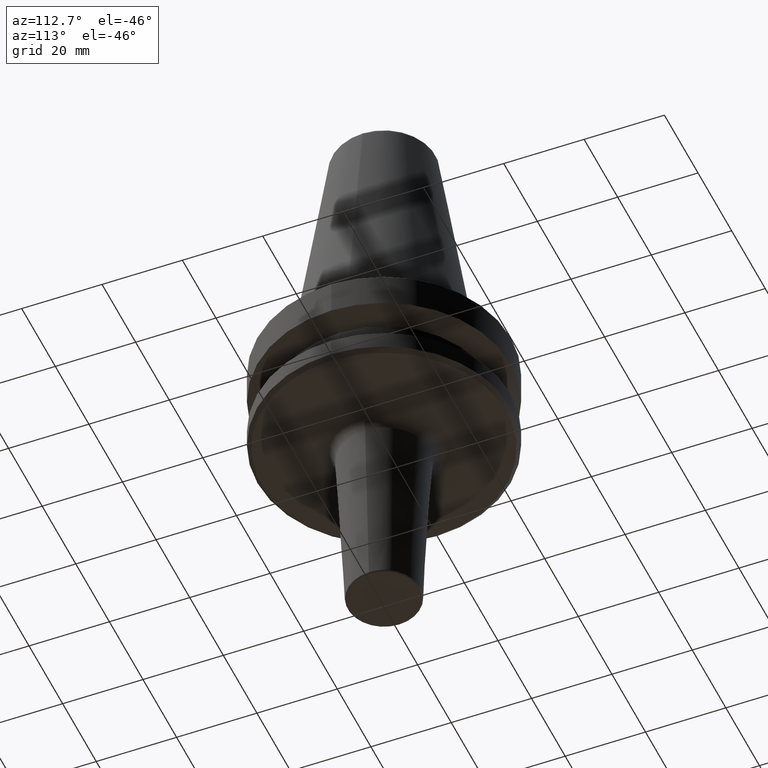
[diagram: clean part render]
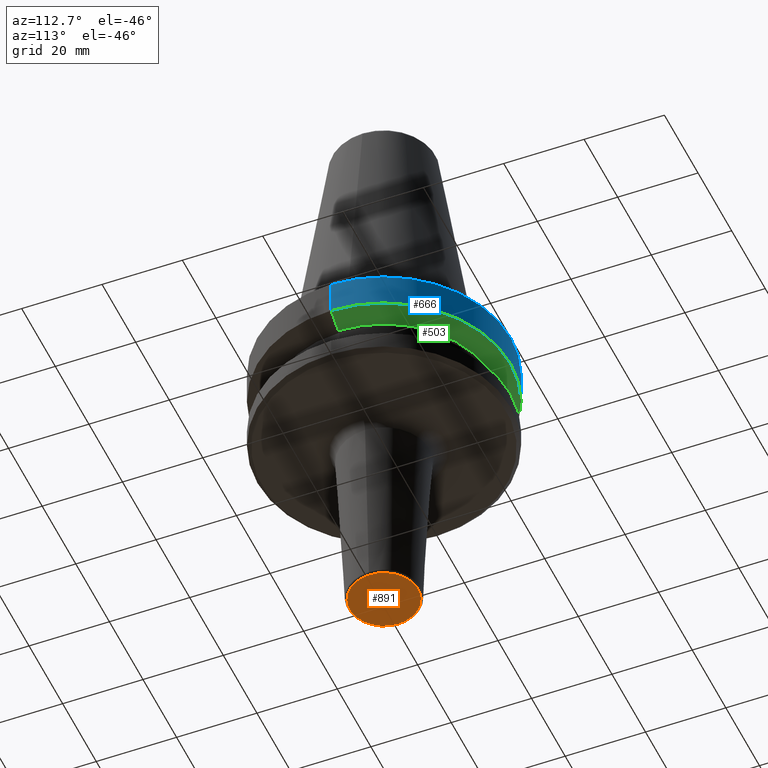
[diagram: same view with three faces highlighted in distinct colors, each labeled with its STEP entity id]
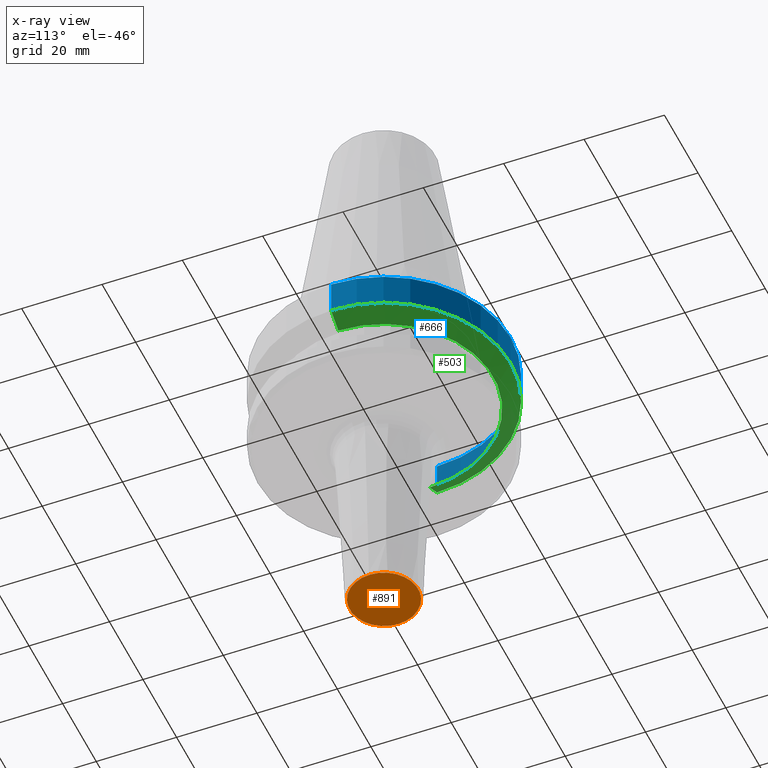
[diagram: x-ray of the same camera — body ghosted, the three highlighted faces saturated]
A machine part, auxiliary view with three faces highlighted in distinct colors.
The next image is the same camera in x-ray (body ghosted, the three faces saturated) — at least one of them is partly hidden behind the body in this view.
Their STEP definitions:

[orange] entity #891 — the highlighted planar face has unit normal (0, 0, -1).
#11 = ORIENTED_EDGE ( 'NONE', *, *, #1039, .F. ) ;
#124 = DIRECTION ( 'NONE',  ( -0.0000000000000000000, -0.0000000000000000000, 1.000000000000000000 ) ) ;
#210 = DIRECTION ( 'NONE',  ( 1.000000000000000000, 0.0000000000000000000, 0.0000000000000000000 ) ) ;
#213 = CARTESIAN_POINT ( 'NONE',  ( 0.0000000000000000000, 0.0000000000000000000, -142.4000000000080500 ) ) ;
#236 = VERTEX_POINT ( 'NONE', #380 ) ;
#248 = PLANE ( 'NONE',  #850 ) ;
#276 = ORIENTED_EDGE ( 'NONE', *, *, #1028, .F. ) ;
#354 = FACE_OUTER_BOUND ( 'NONE', #480, .T. ) ;
#357 = AXIS2_PLACEMENT_3D ( 'NONE', #213, #919, #371 ) ;
#371 = DIRECTION ( 'NONE',  ( 1.000000000000000000, 0.0000000000000000000, 0.0000000000000000000 ) ) ;
#380 = CARTESIAN_POINT ( 'NONE',  ( -8.524375390137768300, 1.074512874999942700E-015, -142.4000000000080500 ) ) ;
#453 = AXIS2_PLACEMENT_3D ( 'NONE', #680, #124, #210 ) ;
#480 = EDGE_LOOP ( 'NONE', ( #276, #11 ) ) ;
#531 = VERTEX_POINT ( 'NONE', #532 ) ;
#532 = CARTESIAN_POINT ( 'NONE',  ( 8.524375390137768300, 0.0000000000000000000, -142.4000000000080500 ) ) ;
#545 = CIRCLE ( 'NONE', #453, 8.524375390137768300 ) ;
#664 = CARTESIAN_POINT ( 'NONE',  ( 0.0000000000000000000, 4.636578971215279600E-013, -142.4000000000080800 ) ) ;
#680 = CARTESIAN_POINT ( 'NONE',  ( 0.0000000000000000000, 0.0000000000000000000, -142.4000000000080500 ) ) ;
#850 = AXIS2_PLACEMENT_3D ( 'NONE', #664, #1036, #881 ) ;
#881 = DIRECTION ( 'NONE',  ( -1.000000000000000000, 0.0000000000000000000, -0.0000000000000000000 ) ) ;
#891 = ADVANCED_FACE ( 'NONE', ( #354 ), #248, .T. ) ;
#919 = DIRECTION ( 'NONE',  ( -0.0000000000000000000, -0.0000000000000000000, 1.000000000000000000 ) ) ;
#971 = CIRCLE ( 'NONE', #357, 8.524375390137768300 ) ;
#1028 = EDGE_CURVE ( 'NONE', #531, #236, #971, .T. ) ;
#1036 = DIRECTION ( 'NONE',  ( 0.0000000000000000000, 0.0000000000000000000, -1.000000000000000000 ) ) ;
#1039 = EDGE_CURVE ( 'NONE', #236, #531, #545, .T. ) ;

[blue] entity #666 — the highlighted cylindrical surface (partial cylindrical patch) has radius 31.5 mm, axis along (-0, -0, 1).
#48 = CARTESIAN_POINT ( 'NONE',  ( 0.0000000000000000000, 0.0000000000000000000, 6.357346922996331500 ) ) ;
#51 = CYLINDRICAL_SURFACE ( 'NONE', #440, 31.50000000000008500 ) ;
#57 = VECTOR ( 'NONE', #108, 1000.000000000000000 ) ;
#68 = EDGE_LOOP ( 'NONE', ( #247, #792, #118, #733 ) ) ;
#95 = EDGE_CURVE ( 'NONE', #512, #312, #275, .T. ) ;
#108 = DIRECTION ( 'NONE',  ( -0.0000000000000000000, -0.0000000000000000000, 1.000000000000000000 ) ) ;
#118 = ORIENTED_EDGE ( 'NONE', *, *, #548, .F. ) ;
#133 = CARTESIAN_POINT ( 'NONE',  ( 31.50000000000008500, 0.0000000000000000000, -68.40000000000046000 ) ) ;
#139 = AXIS2_PLACEMENT_3D ( 'NONE', #933, #783, #144 ) ;
#144 = DIRECTION ( 'NONE',  ( 1.000000000000000000, 0.0000000000000000000, 0.0000000000000000000 ) ) ;
#152 = CARTESIAN_POINT ( 'NONE',  ( 0.0000000000000000000, 0.0000000000000000000, -68.40000000000046000 ) ) ;
#247 = ORIENTED_EDGE ( 'NONE', *, *, #988, .T. ) ;
#255 = DIRECTION ( 'NONE',  ( 1.000000000000000000, 0.0000000000000000000, 0.0000000000000000000 ) ) ;
#275 = LINE ( 'NONE', #318, #57 ) ;
#312 = VERTEX_POINT ( 'NONE', #706 ) ;
#318 = CARTESIAN_POINT ( 'NONE',  ( -31.50000000000008500, 3.857637417314172900E-015, 6.357346922996331500 ) ) ;
#350 = CIRCLE ( 'NONE', #773, 31.50000000000008500 ) ;
#440 = AXIS2_PLACEMENT_3D ( 'NONE', #48, #918, #852 ) ;
#455 = VECTOR ( 'NONE', #786, 1000.000000000000000 ) ;
#477 = EDGE_CURVE ( 'NONE', #954, #804, #693, .T. ) ;
#478 = FACE_OUTER_BOUND ( 'NONE', #68, .T. ) ;
#489 = CARTESIAN_POINT ( 'NONE',  ( -31.50000000000008500, 3.857637417314172900E-015, -76.99985799368391800 ) ) ;
#496 = CARTESIAN_POINT ( 'NONE',  ( 31.50000000000008500, 0.0000000000000000000, -76.99985799368391800 ) ) ;
#512 = VERTEX_POINT ( 'NONE', #489 ) ;
#534 = DIRECTION ( 'NONE',  ( -0.0000000000000000000, -0.0000000000000000000, 1.000000000000000000 ) ) ;
#541 = CARTESIAN_POINT ( 'NONE',  ( 31.50000000000008500, 0.0000000000000000000, 6.357346922996331500 ) ) ;
#548 = EDGE_CURVE ( 'NONE', #804, #312, #350, .T. ) ;
#666 = ADVANCED_FACE ( 'NONE', ( #478 ), #51, .T. ) ;
#693 = LINE ( 'NONE', #541, #455 ) ;
#706 = CARTESIAN_POINT ( 'NONE',  ( -31.50000000000008500, 3.857637417314172900E-015, -68.40000000000046000 ) ) ;
#733 = ORIENTED_EDGE ( 'NONE', *, *, #477, .F. ) ;
#773 = AXIS2_PLACEMENT_3D ( 'NONE', #152, #534, #255 ) ;
#783 = DIRECTION ( 'NONE',  ( -0.0000000000000000000, -0.0000000000000000000, 1.000000000000000000 ) ) ;
#786 = DIRECTION ( 'NONE',  ( -0.0000000000000000000, -0.0000000000000000000, 1.000000000000000000 ) ) ;
#792 = ORIENTED_EDGE ( 'NONE', *, *, #95, .T. ) ;
#804 = VERTEX_POINT ( 'NONE', #133 ) ;
#852 = DIRECTION ( 'NONE',  ( 1.000000000000000000, 0.0000000000000000000, 0.0000000000000000000 ) ) ;
#918 = DIRECTION ( 'NONE',  ( -0.0000000000000000000, -0.0000000000000000000, 1.000000000000000000 ) ) ;
#933 = CARTESIAN_POINT ( 'NONE',  ( 0.0000000000000000000, 0.0000000000000000000, -76.99985799368391800 ) ) ;
#940 = CIRCLE ( 'NONE', #139, 31.50000000000008500 ) ;
#954 = VERTEX_POINT ( 'NONE', #496 ) ;
#988 = EDGE_CURVE ( 'NONE', #954, #512, #940, .T. ) ;

[green] entity #503 — the highlighted conical surface has half-angle 60 deg.
#50 = FACE_OUTER_BOUND ( 'NONE', #206, .T. ) ;
#110 = CARTESIAN_POINT ( 'NONE',  ( 27.16962701892322600, 0.0000000000000000000, -79.50000000000012800 ) ) ;
#139 = AXIS2_PLACEMENT_3D ( 'NONE', #933, #783, #144 ) ;
#144 = DIRECTION ( 'NONE',  ( 1.000000000000000000, 0.0000000000000000000, 0.0000000000000000000 ) ) ;
#164 = EDGE_CURVE ( 'NONE', #1035, #512, #233, .T. ) ;
#206 = EDGE_LOOP ( 'NONE', ( #425, #508, #244, #348 ) ) ;
#233 = LINE ( 'NONE', #744, #808 ) ;
#234 = AXIS2_PLACEMENT_3D ( 'NONE', #451, #475, #1002 ) ;
#244 = ORIENTED_EDGE ( 'NONE', *, *, #988, .F. ) ;
#286 = DIRECTION ( 'NONE',  ( -0.8660254037844383700, 1.060575238724906500E-016, 0.5000000000000003300 ) ) ;
#348 = ORIENTED_EDGE ( 'NONE', *, *, #438, .F. ) ;
#420 = AXIS2_PLACEMENT_3D ( 'NONE', #864, #892, #800 ) ;
#425 = ORIENTED_EDGE ( 'NONE', *, *, #863, .T. ) ;
#438 = EDGE_CURVE ( 'NONE', #554, #954, #934, .T. ) ;
#451 = CARTESIAN_POINT ( 'NONE',  ( 0.0000000000000000000, 0.0000000000000000000, -76.99985799368391800 ) ) ;
#475 = DIRECTION ( 'NONE',  ( -0.0000000000000000000, -0.0000000000000000000, 1.000000000000000000 ) ) ;
#486 = CARTESIAN_POINT ( 'NONE',  ( -27.16962701892322600, 3.592478546794674900E-015, -79.50000000000012800 ) ) ;
#489 = CARTESIAN_POINT ( 'NONE',  ( -31.50000000000008500, 3.857637417314172900E-015, -76.99985799368391800 ) ) ;
#496 = CARTESIAN_POINT ( 'NONE',  ( 31.50000000000008500, 0.0000000000000000000, -76.99985799368391800 ) ) ;
#503 = ADVANCED_FACE ( 'NONE', ( #50 ), #645, .T. ) ;
#504 = VECTOR ( 'NONE', #876, 1000.000000000000100 ) ;
#508 = ORIENTED_EDGE ( 'NONE', *, *, #164, .T. ) ;
#512 = VERTEX_POINT ( 'NONE', #489 ) ;
#554 = VERTEX_POINT ( 'NONE', #110 ) ;
#597 = CARTESIAN_POINT ( 'NONE',  ( 31.50000000000008500, 0.0000000000000000000, -76.99985799368391800 ) ) ;
#645 = CONICAL_SURFACE ( 'NONE', #234, 31.50000000000008500, 1.047197551196597400 ) ;
#744 = CARTESIAN_POINT ( 'NONE',  ( -31.50000000000008500, 3.857637417314172900E-015, -76.99985799368391800 ) ) ;
#783 = DIRECTION ( 'NONE',  ( -0.0000000000000000000, -0.0000000000000000000, 1.000000000000000000 ) ) ;
#789 = CIRCLE ( 'NONE', #420, 27.16962701892322600 ) ;
#800 = DIRECTION ( 'NONE',  ( 1.000000000000000000, 0.0000000000000000000, 0.0000000000000000000 ) ) ;
#808 = VECTOR ( 'NONE', #286, 1000.000000000000100 ) ;
#863 = EDGE_CURVE ( 'NONE', #554, #1035, #789, .T. ) ;
#864 = CARTESIAN_POINT ( 'NONE',  ( 0.0000000000000000000, 0.0000000000000000000, -79.50000000000012800 ) ) ;
#876 = DIRECTION ( 'NONE',  ( 0.8660254037844383700, 0.0000000000000000000, 0.5000000000000003300 ) ) ;
#892 = DIRECTION ( 'NONE',  ( -0.0000000000000000000, -0.0000000000000000000, 1.000000000000000000 ) ) ;
#933 = CARTESIAN_POINT ( 'NONE',  ( 0.0000000000000000000, 0.0000000000000000000, -76.99985799368391800 ) ) ;
#934 = LINE ( 'NONE', #597, #504 ) ;
#940 = CIRCLE ( 'NONE', #139, 31.50000000000008500 ) ;
#954 = VERTEX_POINT ( 'NONE', #496 ) ;
#988 = EDGE_CURVE ( 'NONE', #954, #512, #940, .T. ) ;
#1002 = DIRECTION ( 'NONE',  ( 1.000000000000000000, 0.0000000000000000000, 0.0000000000000000000 ) ) ;
#1035 = VERTEX_POINT ( 'NONE', #486 ) ;